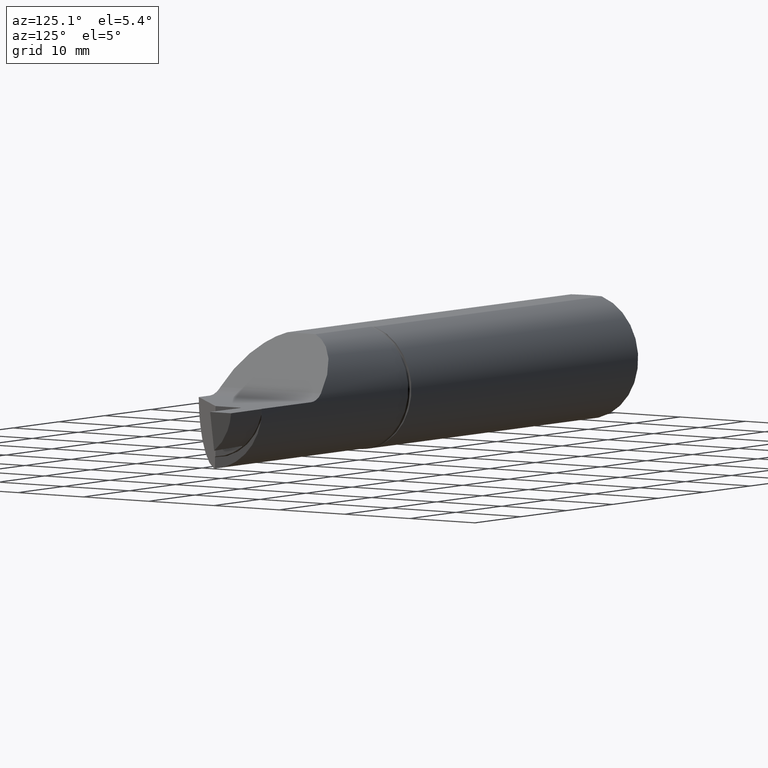
[diagram: clean part render]
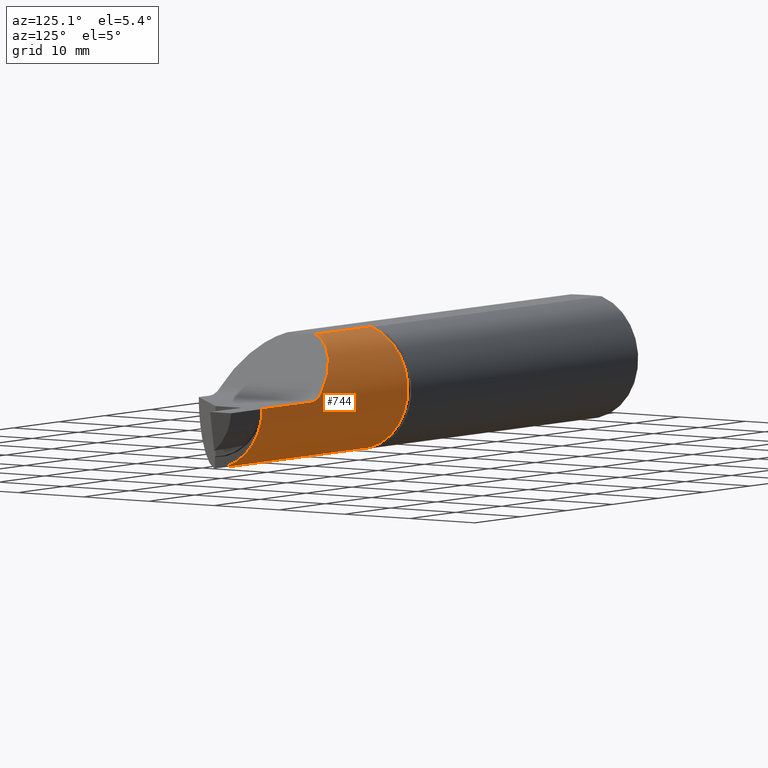
[diagram: same view with one face highlighted and labeled with its STEP entity id]
A machine part, auxiliary view. The second image highlights one B-rep face of the part: STEP entity #744.
In plain terms, the highlighted cylindrical surface (partial cylindrical patch) has radius 7.9375 mm, axis along (-1, -0, -0).
Its self-contained STEP definition (entity closure, byte-faithful):
#7 = ORIENTED_EDGE ( 'NONE', *, *, #832, .T. ) ;
#8 = DIRECTION ( 'NONE',  ( 0.000000000000000000, 0.000000000000000000, 1.000000000000000000 ) ) ;
#13 = DIRECTION ( 'NONE',  ( 1.000000000000000000, 0.000000000000000000, 0.000000000000000000 ) ) ;
#15 = VERTEX_POINT ( 'NONE', #234 ) ;
#36 = DIRECTION ( 'NONE',  ( -1.000000000000000000, -0.000000000000000000, -0.000000000000000000 ) ) ;
#59 = AXIS2_PLACEMENT_3D ( 'NONE', #727, #313, #8 ) ;
#73 = EDGE_CURVE ( 'NONE', #642, #367, #410, .T. ) ;
#78 = AXIS2_PLACEMENT_3D ( 'NONE', #916, #706, #197 ) ;
#80 =( BOUNDED_CURVE ( )  B_SPLINE_CURVE ( 3, ( #505, #499, #908, #629 ),
 .UNSPECIFIED., .F., .T. ) 
 B_SPLINE_CURVE_WITH_KNOTS ( ( 4, 4 ),
 ( 4.616881410844483113, 4.678243010496542453 ),
 .UNSPECIFIED. ) 
 CURVE ( )  GEOMETRIC_REPRESENTATION_ITEM ( )  RATIONAL_B_SPLINE_CURVE ( ( 1.000000000000000000, 0.9996862541195531415, 0.9996862541195531415, 1.000000000000000000 ) ) 
 REPRESENTATION_ITEM ( '' )  );
#82 = CARTESIAN_POINT ( 'NONE',  ( 3.220328620411804899, 0.2910798262351226295, -0.06228223703049238363 ) ) ;
#86 = CARTESIAN_POINT ( 'NONE',  ( 2.767240569818964158, 0.2973273312837140803, 0.004032474903713762111 ) ) ;
#92 = EDGE_LOOP ( 'NONE', ( #715, #723, #577, #506, #7, #636, #618, #194, #851, #547, #128 ) ) ;
#103 = CARTESIAN_POINT ( 'NONE',  ( 1.968000000000000416, -0.01515076164021939703, 0.000000000000000000 ) ) ;
#128 = ORIENTED_EDGE ( 'NONE', *, *, #566, .F. ) ;
#142 = CARTESIAN_POINT ( 'NONE',  ( 3.220315263846207809, 0.2918450233657421400, -0.05851989999312107865 ) ) ;
#159 = CARTESIAN_POINT ( 'NONE',  ( 2.783262096974776334, 0.2973522559233169882, 0.0008266951744985345579 ) ) ;
#176 = EDGE_CURVE ( 'NONE', #903, #493, #80, .T. ) ;
#184 = CIRCLE ( 'NONE', #199, 0.3125000000000000000 ) ;
#190 = VERTEX_POINT ( 'NONE', #624 ) ;
#194 = ORIENTED_EDGE ( 'NONE', *, *, #268, .T. ) ;
#197 = DIRECTION ( 'NONE',  ( 0.000000000000000000, 0.000000000000000000, 1.000000000000000000 ) ) ;
#199 = AXIS2_PLACEMENT_3D ( 'NONE', #103, #36, #336 ) ;
#210 = VERTEX_POINT ( 'NONE', #555 ) ;
#221 = CARTESIAN_POINT ( 'NONE',  ( 2.744331949518403757, 0.2971080177065928973, 0.01267066154421023563 ) ) ;
#225 = CARTESIAN_POINT ( 'NONE',  ( 2.711388347648312713, 0.2951971671624062377, 0.03661165235168226811 ) ) ;
#234 = CARTESIAN_POINT ( 'NONE',  ( 1.968000000000000416, -0.004482219491799574983, -0.3123178384409500685 ) ) ;
#237 = DIRECTION ( 'NONE',  ( 0.000000000000000000, 0.000000000000000000, 1.000000000000000000 ) ) ;
#252 = B_SPLINE_CURVE_WITH_KNOTS ( 'NONE', 3,
 ( #790, #385, #796, #716, #142, #82 ),
 .UNSPECIFIED., .F., .F.,
 ( 4, 2, 4 ),
 ( 1.070107864296681415E-06, 0.0002953583308925890045, 0.0005896465539208812622 ),
 .UNSPECIFIED. ) ;
#263 = CARTESIAN_POINT ( 'NONE',  ( 1.960000000000000409, 0.2973492383597805544, 0.000000000000000000 ) ) ;
#268 = EDGE_CURVE ( 'NONE', #367, #903, #486, .T. ) ;
#278 =( BOUNDED_CURVE ( )  B_SPLINE_CURVE ( 3, ( #669, #817, #467, #896 ),
 .UNSPECIFIED., .F., .T. ) 
 B_SPLINE_CURVE_WITH_KNOTS ( ( 4, 4 ),
 ( 4.829815950483568265, 5.981106177898003473 ),
 .UNSPECIFIED. ) 
 CURVE ( )  GEOMETRIC_REPRESENTATION_ITEM ( )  RATIONAL_B_SPLINE_CURVE ( ( 1.000000000000000000, 0.8925608616953475405, 0.8925608616953475405, 1.000000000000000000 ) ) 
 REPRESENTATION_ITEM ( '' )  );
#293 = VERTEX_POINT ( 'NONE', #492 ) ;
#295 = CARTESIAN_POINT ( 'NONE',  ( 2.799776695296631868, 0.2973492383597806654, -1.707404996040164512E-17 ) ) ;
#301 = CARTESIAN_POINT ( 'NONE',  ( 3.221999999999999531, 0.1953265537569539856, -0.2309882025195200694 ) ) ;
#313 = DIRECTION ( 'NONE',  ( -1.000000000000000000, -0.000000000000000000, -0.000000000000000000 ) ) ;
#333 = CARTESIAN_POINT ( 'NONE',  ( 3.221999999999999531, 0.1953265537569539856, -0.2309882025195200694 ) ) ;
#336 = DIRECTION ( 'NONE',  ( 0.000000000000000000, 0.000000000000000000, 1.000000000000000000 ) ) ;
#352 = CARTESIAN_POINT ( 'NONE',  ( 2.799776695296631868, 0.2973492383597806654, -1.707404996040164512E-17 ) ) ;
#356 = CARTESIAN_POINT ( 'NONE',  ( 3.220328620411804899, 0.2910798262351226295, -0.06228223703049238363 ) ) ;
#367 = VERTEX_POINT ( 'NONE', #301 ) ;
#368 = DIRECTION ( 'NONE',  ( -1.000000000000000000, -0.000000000000000000, -0.000000000000000000 ) ) ;
#377 = CARTESIAN_POINT ( 'NONE',  ( 2.791523900243894740, 0.2973492383597806099, -2.240969057302715998E-17 ) ) ;
#385 = CARTESIAN_POINT ( 'NONE',  ( 3.221279732017986230, 0.2943550407146162118, -0.04332285891969866326 ) ) ;
#389 = CARTESIAN_POINT ( 'NONE',  ( 3.221999999999999531, 0.01464999999999971360, -0.3110758180985189747 ) ) ;
#395 = B_SPLINE_CURVE_WITH_KNOTS ( 'NONE', 3,
 ( #225, #450, #439, #731, #221, #434, #86, #159, #377, #295 ),
 .UNSPECIFIED., .F., .F.,
 ( 4, 2, 2, 2, 4 ),
 ( 0.000000000000000000, 0.0006199328346996068641, 0.001239865669399213728, 0.001859798504098820592, 0.002479731338798427456 ),
 .UNSPECIFIED. ) ;
#398 = CARTESIAN_POINT ( 'NONE',  ( 3.220328620411804899, 0.2910798262351226295, -0.06228223703049238363 ) ) ;
#403 = EDGE_CURVE ( 'NONE', #190, #210, #722, .T. ) ;
#410 =( BOUNDED_CURVE ( )  B_SPLINE_CURVE ( 3, ( #398, #470, #824, #333 ),
 .UNSPECIFIED., .F., .T. ) 
 B_SPLINE_CURVE_WITH_KNOTS ( ( 4, 4 ),
 ( 0.2006467614678079381, 0.8318256803878837369 ),
 .UNSPECIFIED. ) 
 CURVE ( )  GEOMETRIC_REPRESENTATION_ITEM ( )  RATIONAL_B_SPLINE_CURVE ( ( 1.000000000000000000, 0.9670757263278473292, 0.9670757263278473292, 1.000000000000000000 ) ) 
 REPRESENTATION_ITEM ( '' )  );
#434 = CARTESIAN_POINT ( 'NONE',  ( 2.759453897954011747, 0.2972994535838713870, 0.006399527291019162234 ) ) ;
#439 = CARTESIAN_POINT ( 'NONE',  ( 2.723503842258455432, 0.2963290950768749377, 0.02563397962624387738 ) ) ;
#450 = CARTESIAN_POINT ( 'NONE',  ( 2.717205560604044390, 0.2958834220351635458, 0.03079443939595079630 ) ) ;
#467 = CARTESIAN_POINT ( 'NONE',  ( 2.487452056093010455, 0.1991296308314487729, 0.2605479439069872671 ) ) ;
#470 = CARTESIAN_POINT ( 'NONE',  ( 3.220561227681545624, 0.2777537646766941037, -0.1278040914093364344 ) ) ;
#486 = CIRCLE ( 'NONE', #78, 0.3125000000000000000 ) ;
#492 = CARTESIAN_POINT ( 'NONE',  ( 2.711388347648312713, 0.2951971671624062377, 0.03661165235168226811 ) ) ;
#493 = VERTEX_POINT ( 'NONE', #823 ) ;
#499 = CARTESIAN_POINT ( 'NONE',  ( 3.215636298311567387, 0.008286298311567390912, -0.3116854545476832605 ) ) ;
#500 = EDGE_CURVE ( 'NONE', #493, #15, #541, .T. ) ;
#502 = VECTOR ( 'NONE', #897, 39.37007874015748143 ) ;
#504 = CYLINDRICAL_SURFACE ( 'NONE', #59, 0.3125000000000000000 ) ;
#505 = CARTESIAN_POINT ( 'NONE',  ( 3.221999999999999531, 0.01464999999999971360, -0.3110758180985189747 ) ) ;
#506 = ORIENTED_EDGE ( 'NONE', *, *, #569, .T. ) ;
#529 = CIRCLE ( 'NONE', #575, 0.3125000000000000000 ) ;
#532 = CARTESIAN_POINT ( 'NONE',  ( 2.595000000000000195, -0.004482219491797726635, -0.3123178384409499575 ) ) ;
#538 = VERTEX_POINT ( 'NONE', #889 ) ;
#541 = LINE ( 'NONE', #532, #810 ) ;
#547 = ORIENTED_EDGE ( 'NONE', *, *, #500, .T. ) ;
#550 = FACE_OUTER_BOUND ( 'NONE', #92, .T. ) ;
#555 = CARTESIAN_POINT ( 'NONE',  ( 2.449649999999997885, 0.07781981166122887983, 0.2983500000000000041 ) ) ;
#566 = EDGE_CURVE ( 'NONE', #190, #15, #184, .T. ) ;
#569 = EDGE_CURVE ( 'NONE', #621, #538, #615, .T. ) ;
#575 = AXIS2_PLACEMENT_3D ( 'NONE', #877, #368, #237 ) ;
#577 = ORIENTED_EDGE ( 'NONE', *, *, #800, .T. ) ;
#591 = VECTOR ( 'NONE', #13, 39.37007874015748143 ) ;
#615 = LINE ( 'NONE', #263, #502 ) ;
#618 = ORIENTED_EDGE ( 'NONE', *, *, #73, .T. ) ;
#621 = VERTEX_POINT ( 'NONE', #352 ) ;
#623 = CARTESIAN_POINT ( 'NONE',  ( 3.222000000000059039, 0.2948363385032719552, -0.03955057198864653234 ) ) ;
#624 = CARTESIAN_POINT ( 'NONE',  ( 1.968000000000000416, 0.07781981166122896310, 0.2983500000000000041 ) ) ;
#629 = CARTESIAN_POINT ( 'NONE',  ( 3.202867780508205087, -0.004482219491794302291, -0.3123178384409499575 ) ) ;
#636 = ORIENTED_EDGE ( 'NONE', *, *, #779, .T. ) ;
#642 = VERTEX_POINT ( 'NONE', #356 ) ;
#647 = CARTESIAN_POINT ( 'NONE',  ( 1.960000000000000409, 0.07781981166122906024, 0.2983500000000000041 ) ) ;
#669 = CARTESIAN_POINT ( 'NONE',  ( 2.711388347648312713, 0.2951971671624062377, 0.03661165235168226811 ) ) ;
#706 = DIRECTION ( 'NONE',  ( -1.000000000000000000, -0.000000000000000000, -0.000000000000000000 ) ) ;
#715 = ORIENTED_EDGE ( 'NONE', *, *, #403, .T. ) ;
#716 = CARTESIAN_POINT ( 'NONE',  ( 3.220416945618103988, 0.2925419249856932580, -0.05473853734253594089 ) ) ;
#718 = VERTEX_POINT ( 'NONE', #623 ) ;
#722 = LINE ( 'NONE', #647, #591 ) ;
#723 = ORIENTED_EDGE ( 'NONE', *, *, #843, .F. ) ;
#727 = CARTESIAN_POINT ( 'NONE',  ( 1.960000000000000409, -0.01515076164021939703, 0.000000000000000000 ) ) ;
#731 = CARTESIAN_POINT ( 'NONE',  ( 2.737023584286429223, 0.2969416066437378099, 0.01658781814739456600 ) ) ;
#744 = ADVANCED_FACE ( 'NONE', ( #550 ), #504, .T. ) ;
#779 = EDGE_CURVE ( 'NONE', #718, #642, #252, .T. ) ;
#790 = CARTESIAN_POINT ( 'NONE',  ( 3.222000000000059039, 0.2948363385032719552, -0.03955057198864653234 ) ) ;
#796 = CARTESIAN_POINT ( 'NONE',  ( 3.220913672724525778, 0.2937980417799980759, -0.04713527064405324818 ) ) ;
#800 = EDGE_CURVE ( 'NONE', #293, #621, #395, .T. ) ;
#810 = VECTOR ( 'NONE', #901, 39.37007874015748143 ) ;
#817 = CARTESIAN_POINT ( 'NONE',  ( 2.585200142108180721, 0.2803107822912631053, 0.1627998578918156414 ) ) ;
#823 = CARTESIAN_POINT ( 'NONE',  ( 3.202867780508205087, -0.004482219491794302291, -0.3123178384409499575 ) ) ;
#824 = CARTESIAN_POINT ( 'NONE',  ( 3.221137321687661981, 0.2447493611705488237, -0.1859539552707850374 ) ) ;
#832 = EDGE_CURVE ( 'NONE', #538, #718, #529, .T. ) ;
#843 = EDGE_CURVE ( 'NONE', #293, #210, #278, .T. ) ;
#851 = ORIENTED_EDGE ( 'NONE', *, *, #176, .T. ) ;
#877 = CARTESIAN_POINT ( 'NONE',  ( 3.221999999999999531, -0.01515076164021939703, 0.000000000000000000 ) ) ;
#889 = CARTESIAN_POINT ( 'NONE',  ( 3.221999999999999531, 0.2973492383597806099, 0.000000000000000000 ) ) ;
#896 = CARTESIAN_POINT ( 'NONE',  ( 2.449649999999997885, 0.07781981166122887983, 0.2983500000000000041 ) ) ;
#897 = DIRECTION ( 'NONE',  ( 1.000000000000000000, 0.000000000000000000, 0.000000000000000000 ) ) ;
#901 = DIRECTION ( 'NONE',  ( -1.000000000000000000, -0.000000000000000000, -0.000000000000000000 ) ) ;
#903 = VERTEX_POINT ( 'NONE', #389 ) ;
#908 = CARTESIAN_POINT ( 'NONE',  ( 3.209256890301320109, 0.001906890301319757400, -0.3120995912621816748 ) ) ;
#916 = CARTESIAN_POINT ( 'NONE',  ( 3.221999999999999531, -0.01515076164021939703, 0.000000000000000000 ) ) ;